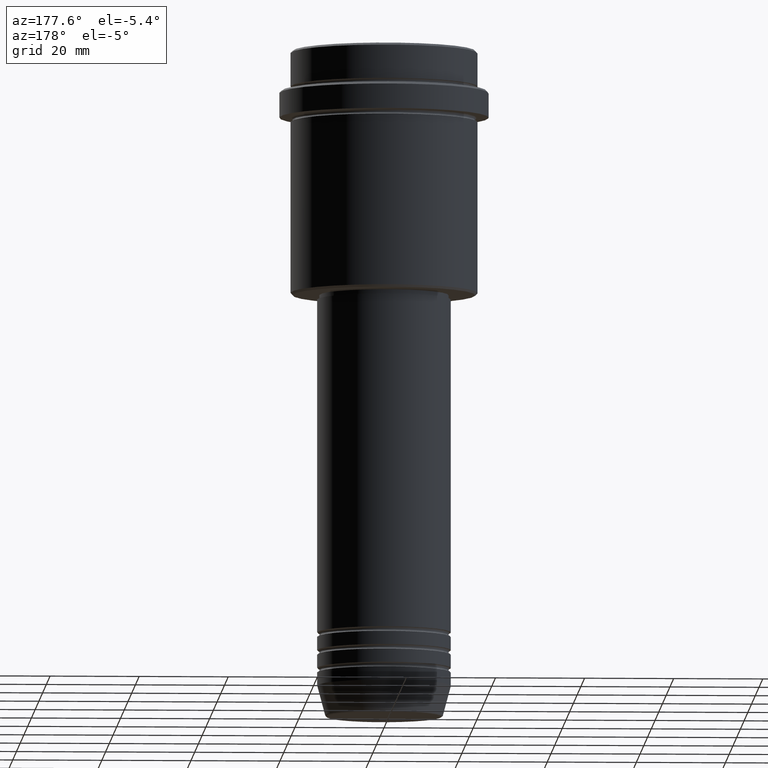
[diagram: clean part render]
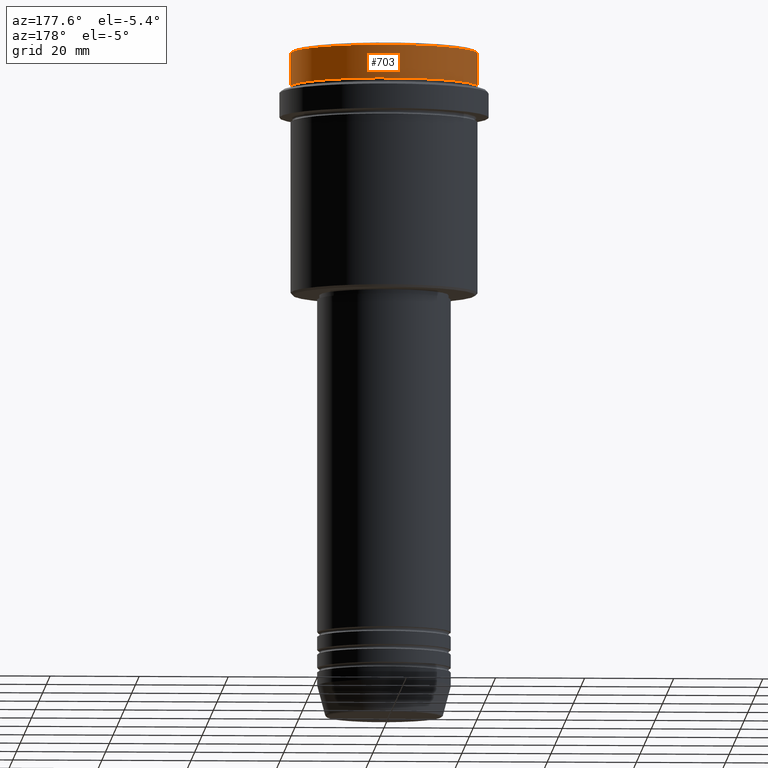
[diagram: same view with one face highlighted and labeled with its STEP entity id]
A machine part, auxiliary view. The second image highlights one B-rep face of the part: STEP entity #703.
In plain terms, the highlighted cylindrical surface (partial cylindrical patch) has radius 21 mm, axis along (-0, -0, 1).
Its self-contained STEP definition (entity closure, byte-faithful):
#33 = ORIENTED_EDGE ( 'NONE', *, *, #753, .T. ) ;
#157 = ORIENTED_EDGE ( 'NONE', *, *, #1061, .T. ) ;
#166 = AXIS2_PLACEMENT_3D ( 'NONE', #1226, #1215, #1016 ) ;
#171 = CARTESIAN_POINT ( 'NONE',  ( -20.99999999999999645, 2.571758278209441267E-15, -7.999999999999998224 ) ) ;
#207 = VECTOR ( 'NONE', #1060, 1000.000000000000000 ) ;
#220 = FACE_OUTER_BOUND ( 'NONE', #260, .T. ) ;
#260 = EDGE_LOOP ( 'NONE', ( #885, #157, #33, #796 ) ) ;
#288 = CARTESIAN_POINT ( 'NONE',  ( -20.99999999999999645, 2.571758278209441267E-15, 0.000000000000000000 ) ) ;
#289 = LINE ( 'NONE', #486, #549 ) ;
#298 = VERTEX_POINT ( 'NONE', #670 ) ;
#327 = CYLINDRICAL_SURFACE ( 'NONE', #1128, 20.99999999999999645 ) ;
#391 = EDGE_CURVE ( 'NONE', #529, #298, #289, .T. ) ;
#406 = CARTESIAN_POINT ( 'NONE',  ( -20.99999999999999645, 2.571758278209441267E-15, -0.4999999999999657496 ) ) ;
#422 = DIRECTION ( 'NONE',  ( 0.000000000000000000, 0.000000000000000000, -1.000000000000000000 ) ) ;
#426 = VERTEX_POINT ( 'NONE', #171 ) ;
#459 = AXIS2_PLACEMENT_3D ( 'NONE', #1189, #422, #631 ) ;
#469 = VERTEX_POINT ( 'NONE', #406 ) ;
#486 = CARTESIAN_POINT ( 'NONE',  ( 20.99999999999999645, 0.000000000000000000, 0.000000000000000000 ) ) ;
#529 = VERTEX_POINT ( 'NONE', #849 ) ;
#543 = DIRECTION ( 'NONE',  ( 1.000000000000000000, 0.000000000000000000, 0.000000000000000000 ) ) ;
#549 = VECTOR ( 'NONE', #947, 1000.000000000000000 ) ;
#604 = LINE ( 'NONE', #288, #207 ) ;
#631 = DIRECTION ( 'NONE',  ( 1.000000000000000000, 0.000000000000000000, 0.000000000000000000 ) ) ;
#652 = CARTESIAN_POINT ( 'NONE',  ( 0.000000000000000000, 0.000000000000000000, 0.000000000000000000 ) ) ;
#670 = CARTESIAN_POINT ( 'NONE',  ( 20.99999999999999645, 0.000000000000000000, -0.4999999999999657496 ) ) ;
#703 = ADVANCED_FACE ( 'NONE', ( #220 ), #327, .T. ) ;
#750 = DIRECTION ( 'NONE',  ( -0.000000000000000000, -0.000000000000000000, 1.000000000000000000 ) ) ;
#753 = EDGE_CURVE ( 'NONE', #469, #298, #941, .T. ) ;
#796 = ORIENTED_EDGE ( 'NONE', *, *, #391, .F. ) ;
#849 = CARTESIAN_POINT ( 'NONE',  ( 20.99999999999999645, 0.000000000000000000, -7.999999999999998224 ) ) ;
#885 = ORIENTED_EDGE ( 'NONE', *, *, #1166, .T. ) ;
#941 = CIRCLE ( 'NONE', #459, 20.99999999999999645 ) ;
#947 = DIRECTION ( 'NONE',  ( -0.000000000000000000, -0.000000000000000000, 1.000000000000000000 ) ) ;
#1016 = DIRECTION ( 'NONE',  ( 1.000000000000000000, 0.000000000000000000, 0.000000000000000000 ) ) ;
#1060 = DIRECTION ( 'NONE',  ( -0.000000000000000000, -0.000000000000000000, 1.000000000000000000 ) ) ;
#1061 = EDGE_CURVE ( 'NONE', #426, #469, #604, .T. ) ;
#1103 = CIRCLE ( 'NONE', #166, 20.99999999999999645 ) ;
#1128 = AXIS2_PLACEMENT_3D ( 'NONE', #652, #750, #543 ) ;
#1166 = EDGE_CURVE ( 'NONE', #529, #426, #1103, .T. ) ;
#1189 = CARTESIAN_POINT ( 'NONE',  ( 0.000000000000000000, 0.000000000000000000, -0.4999999999999657496 ) ) ;
#1215 = DIRECTION ( 'NONE',  ( -0.000000000000000000, -0.000000000000000000, 1.000000000000000000 ) ) ;
#1226 = CARTESIAN_POINT ( 'NONE',  ( 0.000000000000000000, 0.000000000000000000, -7.999999999999998224 ) ) ;